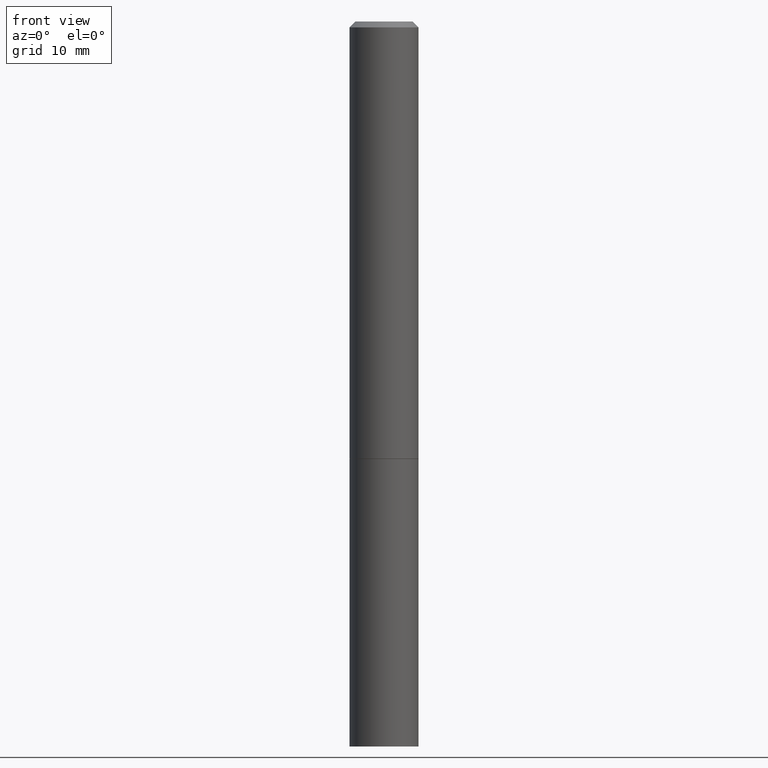
[diagram: clean part render]
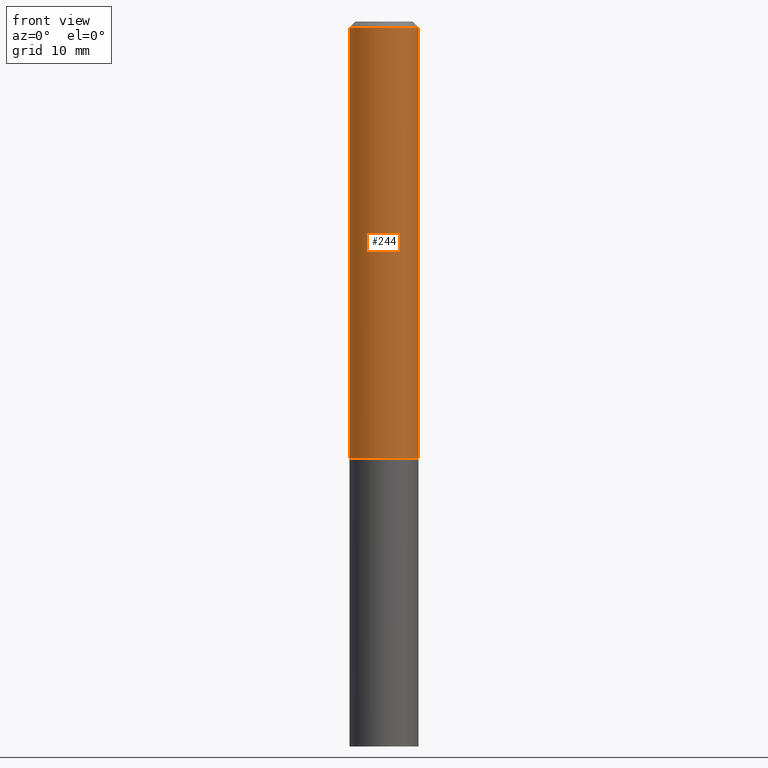
[diagram: same view with one face highlighted and labeled with its STEP entity id]
A machine part, front view. The second image highlights one B-rep face of the part: STEP entity #244.
In plain terms, the highlighted cylindrical surface (edge-blend (fillet) strip) has radius 2.9997 mm, axis along (-0, 0, 1).
Its self-contained STEP definition (entity closure, byte-faithful):
#25 = CARTESIAN_POINT ( 'NONE',  ( 0.000000000000000000, 0.000000000000000000, 0.000000000000000000 ) ) ;
#34 = VERTEX_POINT ( 'NONE', #350 ) ;
#39 = CIRCLE ( 'NONE', #289, 0.1180999999999999966 ) ;
#69 = DIRECTION ( 'NONE',  ( 1.000000000000000000, -6.982962677686266711E-15, 0.000000000000000000 ) ) ;
#95 = CARTESIAN_POINT ( 'NONE',  ( -0.1180999999999998995, 8.391509709326776054E-16, -5.809262341591038879E-30 ) ) ;
#106 = CIRCLE ( 'NONE', #126, 0.1180999999999998162 ) ;
#107 = DIRECTION ( 'NONE',  ( -2.445468806185136877E-29, 3.491481338843145188E-15, 1.000000000000000000 ) ) ;
#108 = FACE_OUTER_BOUND ( 'NONE', #284, .T. ) ;
#115 = EDGE_CURVE ( 'NONE', #178, #34, #39, .T. ) ;
#126 = AXIS2_PLACEMENT_3D ( 'NONE', #261, #320, #69 ) ;
#127 = AXIS2_PLACEMENT_3D ( 'NONE', #25, #358, #329 ) ;
#129 = LINE ( 'NONE', #95, #215 ) ;
#136 = EDGE_CURVE ( 'NONE', #178, #340, #129, .T. ) ;
#154 = CARTESIAN_POINT ( 'NONE',  ( 3.655975865246779683E-29, -5.219764601570503930E-15, -1.495000000000000329 ) ) ;
#165 = CARTESIAN_POINT ( 'NONE',  ( 0.1180999999999998162, -8.800544403136795556E-16, -0.02000000000000001776 ) ) ;
#173 = ORIENTED_EDGE ( 'NONE', *, *, #183, .F. ) ;
#178 = VERTEX_POINT ( 'NONE', #212 ) ;
#183 = EDGE_CURVE ( 'NONE', #340, #321, #106, .T. ) ;
#187 = EDGE_CURVE ( 'NONE', #34, #321, #241, .T. ) ;
#205 = DIRECTION ( 'NONE',  ( -2.445468806185136597E-29, 3.491481338843145583E-15, 1.000000000000000000 ) ) ;
#212 = CARTESIAN_POINT ( 'NONE',  ( -0.1180999999999999966, -1.805646143241002656E-15, -1.495000000000000329 ) ) ;
#215 = VECTOR ( 'NONE', #353, 39.37007874015748143 ) ;
#216 = CARTESIAN_POINT ( 'NONE',  ( 0.1180999999999998995, -8.246878922347473751E-16, 5.758764772214994835E-30 ) ) ;
#228 = ORIENTED_EDGE ( 'NONE', *, *, #115, .T. ) ;
#241 = LINE ( 'NONE', #216, #332 ) ;
#244 = ADVANCED_FACE ( 'NONE', ( #108 ), #276, .T. ) ;
#261 = CARTESIAN_POINT ( 'NONE',  ( 4.890937612370276662E-31, -6.982962677686296539E-17, -0.02000000000000001776 ) ) ;
#267 = DIRECTION ( 'NONE',  ( 1.000000000000000000, -6.982962677686265133E-15, 0.000000000000000000 ) ) ;
#276 = CYLINDRICAL_SURFACE ( 'NONE', #127, 0.1180999999999998995 ) ;
#279 = ORIENTED_EDGE ( 'NONE', *, *, #136, .F. ) ;
#284 = EDGE_LOOP ( 'NONE', ( #279, #228, #287, #173 ) ) ;
#287 = ORIENTED_EDGE ( 'NONE', *, *, #187, .T. ) ;
#289 = AXIS2_PLACEMENT_3D ( 'NONE', #154, #205, #267 ) ;
#312 = CARTESIAN_POINT ( 'NONE',  ( -0.1180999999999998162, 7.548582654578837811E-16, -0.02000000000000001776 ) ) ;
#320 = DIRECTION ( 'NONE',  ( -2.445468806185136597E-29, 3.491481338843145583E-15, 1.000000000000000000 ) ) ;
#321 = VERTEX_POINT ( 'NONE', #165 ) ;
#329 = DIRECTION ( 'NONE',  ( 1.000000000000000000, -6.982962677686266711E-15, 4.876176775795935232E-29 ) ) ;
#332 = VECTOR ( 'NONE', #107, 39.37007874015748143 ) ;
#340 = VERTEX_POINT ( 'NONE', #312 ) ;
#350 = CARTESIAN_POINT ( 'NONE',  ( 0.1180999999999999966, -6.044452493805252192E-15, -1.495000000000000329 ) ) ;
#353 = DIRECTION ( 'NONE',  ( -2.445468806185136877E-29, 3.491481338843145188E-15, 1.000000000000000000 ) ) ;
#358 = DIRECTION ( 'NONE',  ( -2.445468806185136597E-29, 3.491481338843145583E-15, 1.000000000000000000 ) ) ;